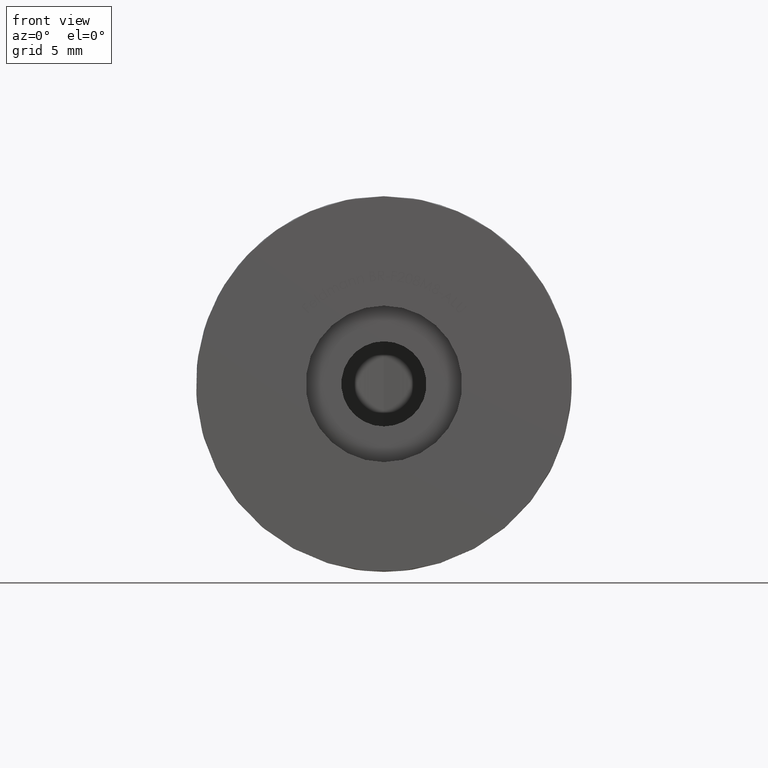
[diagram: clean part render]
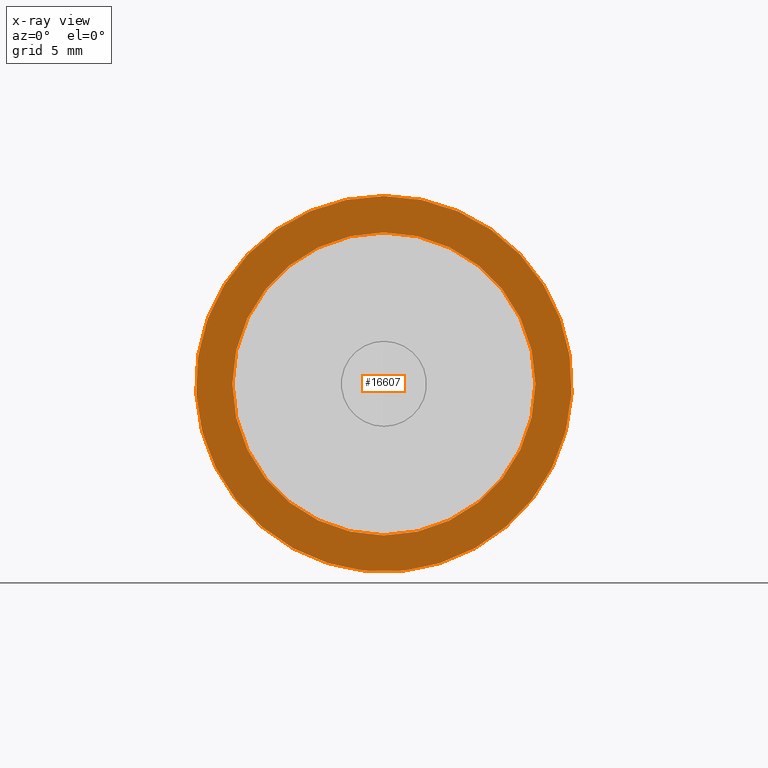
[diagram: x-ray — body ghosted, one internal face saturated and labeled with its STEP entity id]
A machine part, front view, then the same camera in x-ray: the body is ghosted and one INTERNAL B-rep face — a face not visible from any outside direction — is saturated and labeled: STEP entity #16607.
In plain terms, the highlighted planar face has unit normal (0, -1, 0).
Its self-contained STEP definition (entity closure, byte-faithful):
#531 = FACE_BOUND ( 'NONE', #1240, .T. ) ;
#863 = CIRCLE ( 'NONE', #15911, 12.10000000000000000 ) ;
#952 = AXIS2_PLACEMENT_3D ( 'NONE', #16740, #12698, #4936 ) ;
#1240 = EDGE_LOOP ( 'NONE', ( #7160 ) ) ;
#2485 = CARTESIAN_POINT ( 'NONE',  ( 0.0000000000000000000, 12.52999999999999900, 0.0000000000000000000 ) ) ;
#4498 = FACE_OUTER_BOUND ( 'NONE', #14397, .T. ) ;
#4936 = DIRECTION ( 'NONE',  ( 0.0000000000000000000, -0.0000000000000000000, 1.000000000000000000 ) ) ;
#5789 = EDGE_CURVE ( 'NONE', #10559, #10559, #13733, .T. ) ;
#7104 = CARTESIAN_POINT ( 'NONE',  ( 0.0000000000000000000, 12.52999999999999900, 15.00000000000000000 ) ) ;
#7160 = ORIENTED_EDGE ( 'NONE', *, *, #13502, .F. ) ;
#7960 = DIRECTION ( 'NONE',  ( 0.0000000000000000000, 0.0000000000000000000, 1.000000000000000000 ) ) ;
#9943 = VERTEX_POINT ( 'NONE', #13768 ) ;
#10204 = PLANE ( 'NONE',  #952 ) ;
#10559 = VERTEX_POINT ( 'NONE', #7104 ) ;
#10688 = DIRECTION ( 'NONE',  ( 0.0000000000000000000, 1.000000000000000000, 0.0000000000000000000 ) ) ;
#10953 = AXIS2_PLACEMENT_3D ( 'NONE', #14121, #15626, #11346 ) ;
#11346 = DIRECTION ( 'NONE',  ( 0.0000000000000000000, 0.0000000000000000000, 1.000000000000000000 ) ) ;
#12698 = DIRECTION ( 'NONE',  ( 0.0000000000000000000, 1.000000000000000000, 0.0000000000000000000 ) ) ;
#13502 = EDGE_CURVE ( 'NONE', #9943, #9943, #863, .T. ) ;
#13733 = CIRCLE ( 'NONE', #10953, 15.00000000000000000 ) ;
#13768 = CARTESIAN_POINT ( 'NONE',  ( 0.0000000000000000000, 12.52999999999999900, 12.10000000000000000 ) ) ;
#14121 = CARTESIAN_POINT ( 'NONE',  ( 0.0000000000000000000, 12.52999999999999900, 0.0000000000000000000 ) ) ;
#14397 = EDGE_LOOP ( 'NONE', ( #16959 ) ) ;
#15626 = DIRECTION ( 'NONE',  ( 0.0000000000000000000, 1.000000000000000000, 0.0000000000000000000 ) ) ;
#15911 = AXIS2_PLACEMENT_3D ( 'NONE', #2485, #10688, #7960 ) ;
#16607 = ADVANCED_FACE ( 'NONE', ( #4498, #531 ), #10204, .T. ) ;
#16740 = CARTESIAN_POINT ( 'NONE',  ( 0.0000000000000000000, 12.52999999999999900, 0.0000000000000000000 ) ) ;
#16959 = ORIENTED_EDGE ( 'NONE', *, *, #5789, .T. ) ;